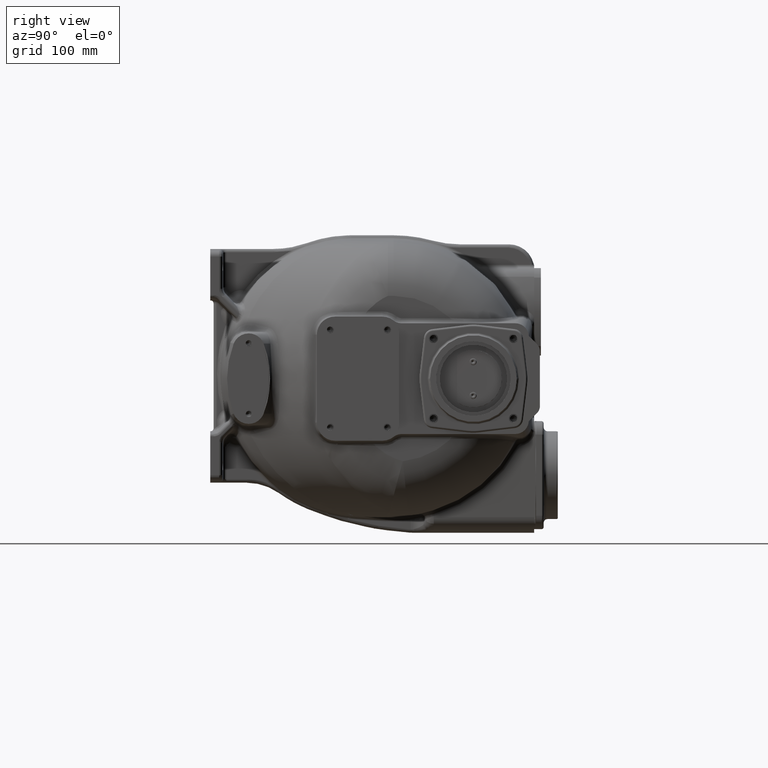
[diagram: clean part render]
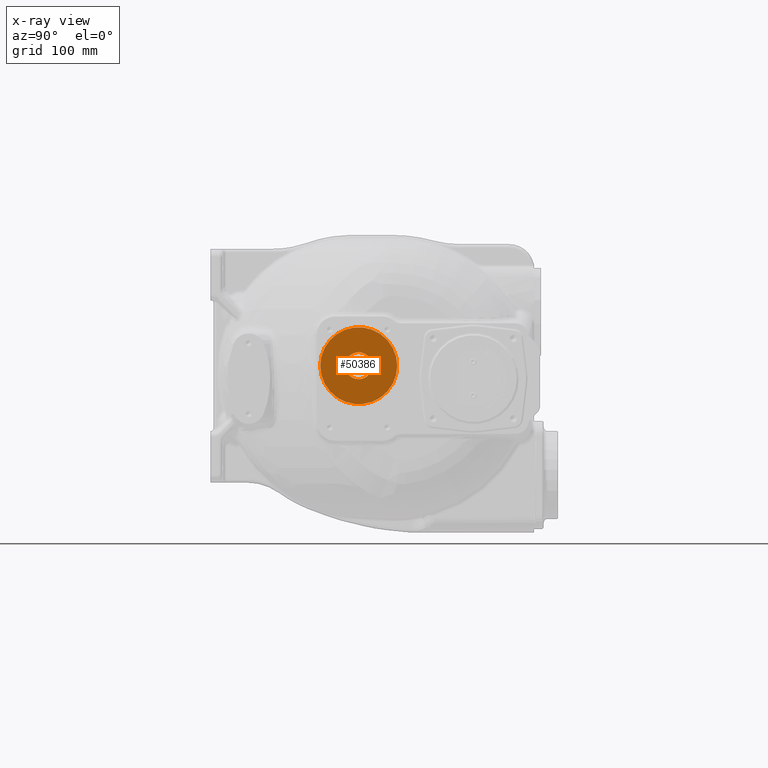
[diagram: x-ray — body ghosted, one internal face saturated and labeled with its STEP entity id]
A machine part, right view, then the same camera in x-ray: the body is ghosted and one INTERNAL B-rep face — a face not visible from any outside direction — is saturated and labeled: STEP entity #50386.
In plain terms, the highlighted planar face has unit normal (-1, 0, 0).
Its self-contained STEP definition (entity closure, byte-faithful):
#13384=CARTESIAN_POINT('',(-2.075E2,2.2E2,-1.9E1));
#13385=DIRECTION('',(1.E0,0.E0,0.E0));
#13386=DIRECTION('',(0.E0,1.E0,0.E0));
#13387=AXIS2_PLACEMENT_3D('',#13384,#13385,#13386);
#13389=CARTESIAN_POINT('',(-2.075E2,2.2E2,-1.9E1));
#13390=DIRECTION('',(1.E0,0.E0,0.E0));
#13391=DIRECTION('',(0.E0,-1.E0,0.E0));
#13392=AXIS2_PLACEMENT_3D('',#13389,#13390,#13391);
#13394=CARTESIAN_POINT('',(-2.075E2,2.2E2,-1.9E1));
#13395=DIRECTION('',(-1.E0,0.E0,0.E0));
#13396=DIRECTION('',(0.E0,1.E0,0.E0));
#13397=AXIS2_PLACEMENT_3D('',#13394,#13395,#13396);
#13399=CARTESIAN_POINT('',(-2.075E2,2.2E2,-1.9E1));
#13400=DIRECTION('',(-1.E0,0.E0,0.E0));
#13401=DIRECTION('',(0.E0,-1.E0,0.E0));
#13402=AXIS2_PLACEMENT_3D('',#13399,#13400,#13401);
#20282=CARTESIAN_POINT('',(-2.075E2,2.77E2,-1.9E1));
#20283=CARTESIAN_POINT('',(-2.075E2,1.63E2,-1.9E1));
#20284=VERTEX_POINT('',#20282);
#20285=VERTEX_POINT('',#20283);
#21255=CARTESIAN_POINT('',(-2.075E2,2.399995E2,-1.9E1));
#21256=CARTESIAN_POINT('',(-2.075E2,2.000005E2,-1.9E1));
#21257=VERTEX_POINT('',#21255);
#21258=VERTEX_POINT('',#21256);
#50371=CARTESIAN_POINT('',(-2.075E2,2.2E2,-1.9E1));
#50372=DIRECTION('',(-1.E0,0.E0,0.E0));
#50373=DIRECTION('',(0.E0,1.E0,0.E0));
#50374=AXIS2_PLACEMENT_3D('',#50371,#50372,#50373);
#50375=PLANE('',#50374);
#50376=ORIENTED_EDGE('',*,*,#50365,.T.);
#50377=ORIENTED_EDGE('',*,*,#50351,.T.);
#50378=EDGE_LOOP('',(#50376,#50377));
#50379=FACE_OUTER_BOUND('',#50378,.F.);
#50381=ORIENTED_EDGE('',*,*,#50380,.T.);
#50383=ORIENTED_EDGE('',*,*,#50382,.T.);
#50384=EDGE_LOOP('',(#50381,#50383));
#50385=FACE_BOUND('',#50384,.F.);
#50386=ADVANCED_FACE('',(#50379,#50385),#50375,.T.);
#13388=CIRCLE('',#13387,5.7E1);
#13393=CIRCLE('',#13392,5.7E1);
#13398=CIRCLE('',#13397,1.99995E1);
#13403=CIRCLE('',#13402,1.99995E1);
#50351=EDGE_CURVE('',#20285,#20284,#13393,.T.);
#50365=EDGE_CURVE('',#20284,#20285,#13388,.T.);
#50380=EDGE_CURVE('',#21257,#21258,#13398,.T.);
#50382=EDGE_CURVE('',#21258,#21257,#13403,.T.);